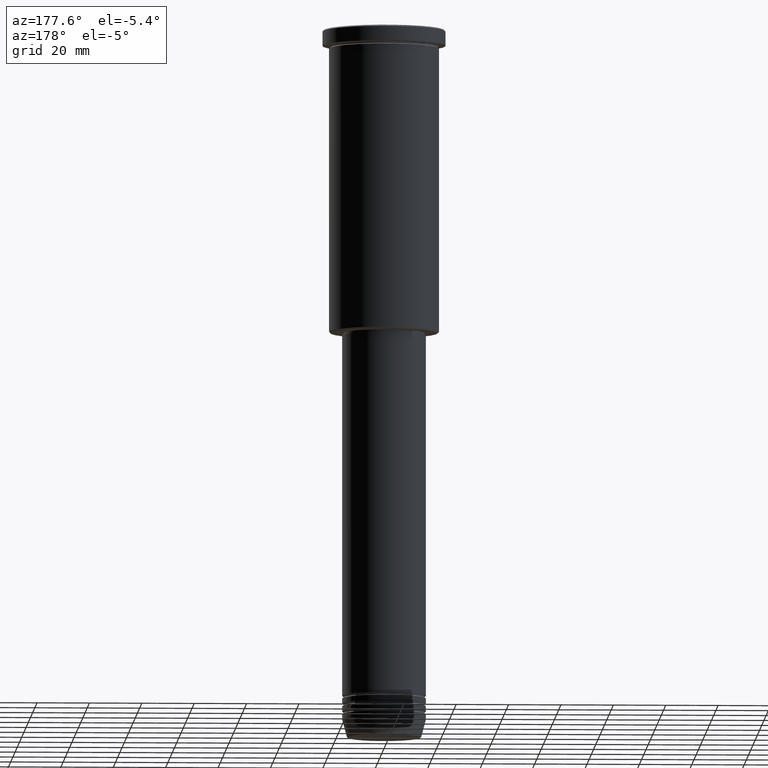
[diagram: clean part render]
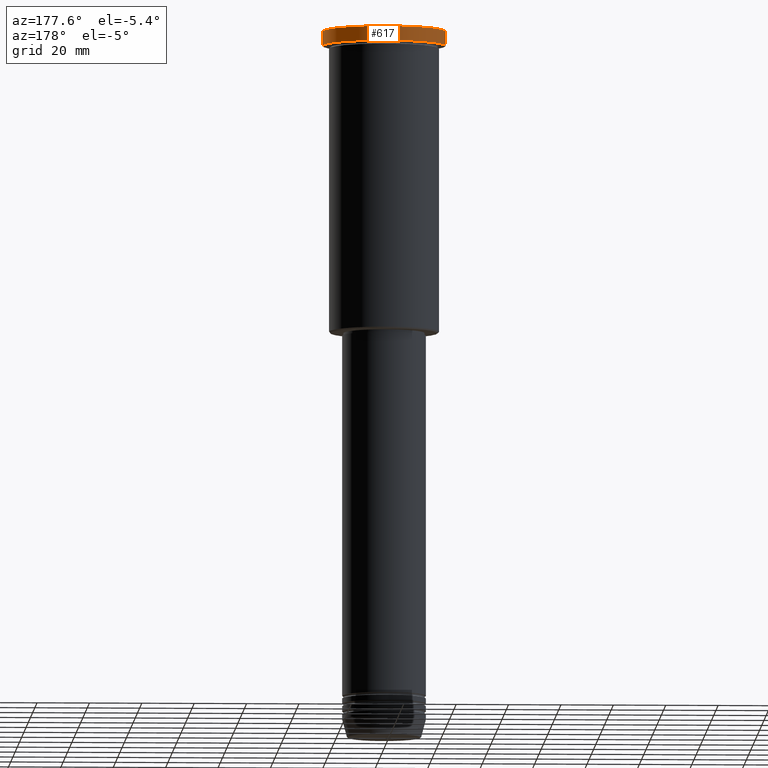
[diagram: same view with one face highlighted and labeled with its STEP entity id]
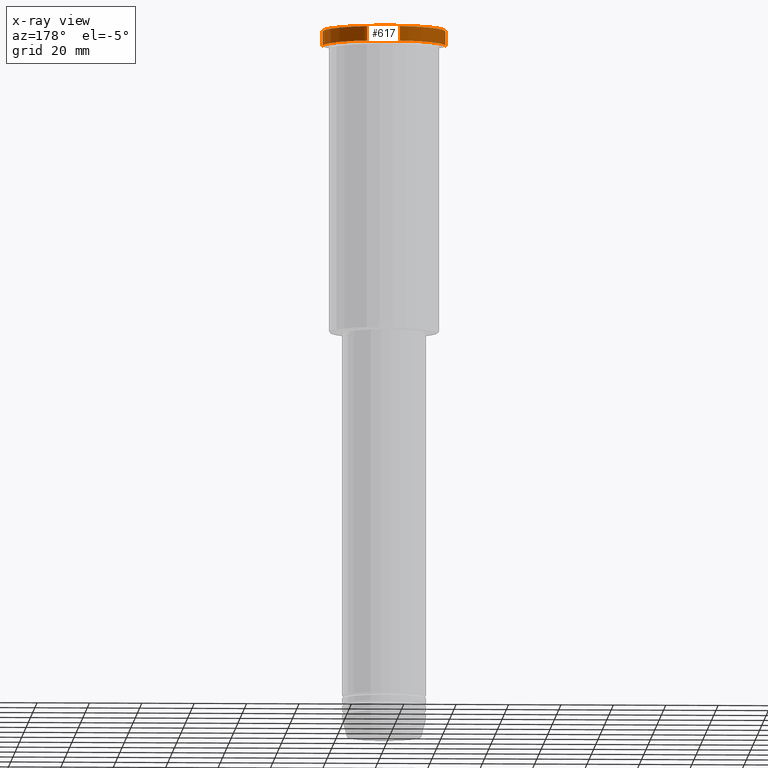
[diagram: x-ray of the same camera — body ghosted, the highlighted face saturated]
A machine part, auxiliary view. The second image highlights one B-rep face of the part: STEP entity #617.
The next image is the same camera in x-ray: the body ghosted, the highlighted face saturated — about 0% of this face is hidden behind the body in this view.
In plain terms, the highlighted cylindrical surface (partial cylindrical patch) has radius 23.5 mm, axis along (-0, -0, 1).
Its self-contained STEP definition (entity closure, byte-faithful):
#49 = CARTESIAN_POINT ( 'NONE',  ( 23.50000000000000000, 0.000000000000000000, 0.000000000000000000 ) ) ;
#50 = DIRECTION ( 'NONE',  ( -0.000000000000000000, -0.000000000000000000, 1.000000000000000000 ) ) ;
#105 = CARTESIAN_POINT ( 'NONE',  ( 23.50000000000000000, 0.000000000000000000, -5.999999999999994671 ) ) ;
#149 = EDGE_CURVE ( 'NONE', #356, #553, #524, .T. ) ;
#192 = CARTESIAN_POINT ( 'NONE',  ( 0.000000000000000000, 0.000000000000000000, 0.000000000000000000 ) ) ;
#201 = CARTESIAN_POINT ( 'NONE',  ( 23.50000000000000000, 0.000000000000000000, -0.5000000000000004441 ) ) ;
#260 = CARTESIAN_POINT ( 'NONE',  ( 0.000000000000000000, 0.000000000000000000, -0.5000000000000004441 ) ) ;
#343 = CARTESIAN_POINT ( 'NONE',  ( -23.50000000000000000, 2.877919977996280320E-15, -0.5000000000000004441 ) ) ;
#356 = VERTEX_POINT ( 'NONE', #105 ) ;
#371 = DIRECTION ( 'NONE',  ( 1.000000000000000000, 0.000000000000000000, 0.000000000000000000 ) ) ;
#451 = VECTOR ( 'NONE', #1061, 1000.000000000000000 ) ;
#456 = VERTEX_POINT ( 'NONE', #343 ) ;
#480 = EDGE_LOOP ( 'NONE', ( #1100, #523, #997, #1114 ) ) ;
#519 = CIRCLE ( 'NONE', #696, 23.50000000000000000 ) ;
#523 = ORIENTED_EDGE ( 'NONE', *, *, #1137, .T. ) ;
#524 = LINE ( 'NONE', #49, #451 ) ;
#553 = VERTEX_POINT ( 'NONE', #201 ) ;
#555 = EDGE_CURVE ( 'NONE', #356, #819, #851, .T. ) ;
#581 = DIRECTION ( 'NONE',  ( -0.000000000000000000, -0.000000000000000000, 1.000000000000000000 ) ) ;
#584 = CYLINDRICAL_SURFACE ( 'NONE', #888, 23.50000000000000000 ) ;
#617 = ADVANCED_FACE ( 'NONE', ( #666 ), #584, .T. ) ;
#666 = FACE_OUTER_BOUND ( 'NONE', #480, .T. ) ;
#669 = CARTESIAN_POINT ( 'NONE',  ( -23.50000000000000000, 2.877919977996280320E-15, -5.999999999999994671 ) ) ;
#696 = AXIS2_PLACEMENT_3D ( 'NONE', #260, #989, #1150 ) ;
#749 = DIRECTION ( 'NONE',  ( 1.000000000000000000, 0.000000000000000000, 0.000000000000000000 ) ) ;
#770 = LINE ( 'NONE', #1141, #1107 ) ;
#819 = VERTEX_POINT ( 'NONE', #669 ) ;
#851 = CIRCLE ( 'NONE', #964, 23.50000000000000000 ) ;
#863 = EDGE_CURVE ( 'NONE', #456, #553, #519, .T. ) ;
#888 = AXIS2_PLACEMENT_3D ( 'NONE', #192, #939, #371 ) ;
#919 = CARTESIAN_POINT ( 'NONE',  ( 0.000000000000000000, 0.000000000000000000, -5.999999999999994671 ) ) ;
#939 = DIRECTION ( 'NONE',  ( -0.000000000000000000, -0.000000000000000000, 1.000000000000000000 ) ) ;
#964 = AXIS2_PLACEMENT_3D ( 'NONE', #919, #581, #749 ) ;
#989 = DIRECTION ( 'NONE',  ( 0.000000000000000000, 0.000000000000000000, -1.000000000000000000 ) ) ;
#997 = ORIENTED_EDGE ( 'NONE', *, *, #863, .T. ) ;
#1061 = DIRECTION ( 'NONE',  ( -0.000000000000000000, -0.000000000000000000, 1.000000000000000000 ) ) ;
#1100 = ORIENTED_EDGE ( 'NONE', *, *, #555, .T. ) ;
#1107 = VECTOR ( 'NONE', #50, 1000.000000000000000 ) ;
#1114 = ORIENTED_EDGE ( 'NONE', *, *, #149, .F. ) ;
#1137 = EDGE_CURVE ( 'NONE', #819, #456, #770, .T. ) ;
#1141 = CARTESIAN_POINT ( 'NONE',  ( -23.50000000000000000, 2.877919977996280320E-15, 0.000000000000000000 ) ) ;
#1150 = DIRECTION ( 'NONE',  ( 1.000000000000000000, 0.000000000000000000, 0.000000000000000000 ) ) ;